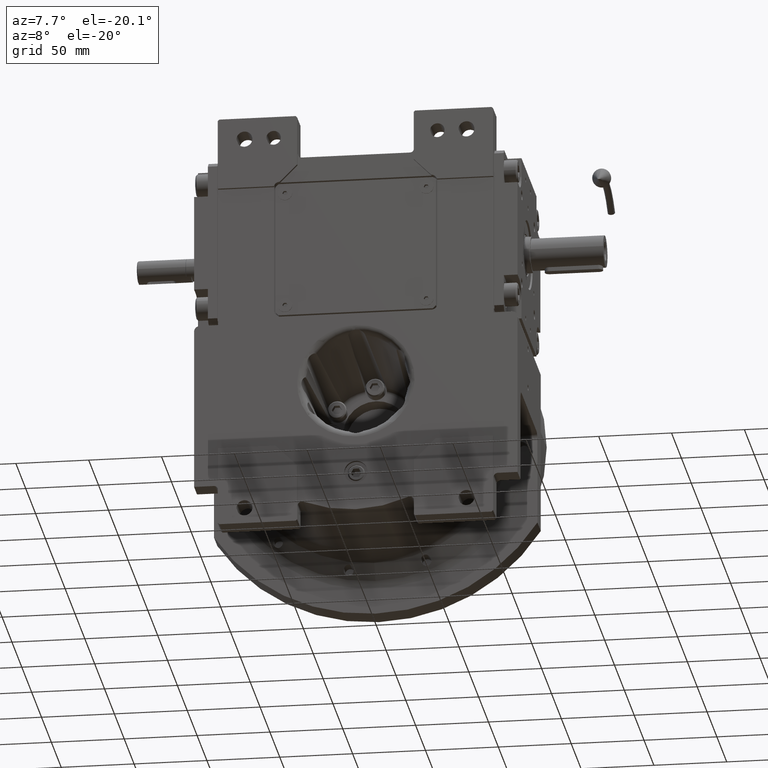
[diagram: clean part render]
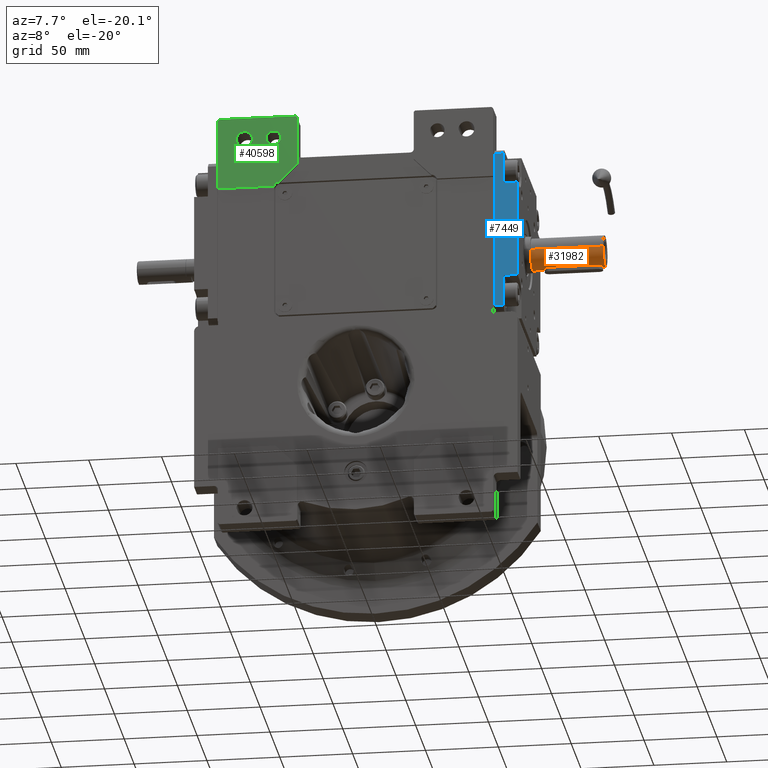
[diagram: same view with three faces highlighted in distinct colors, each labeled with its STEP entity id]
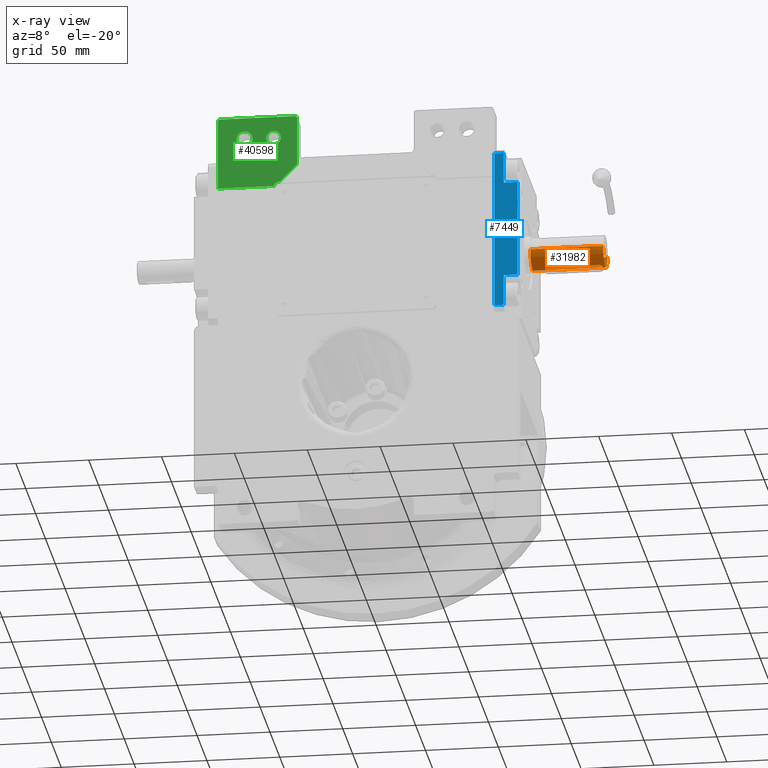
[diagram: x-ray of the same camera — body ghosted, the three highlighted faces saturated]
A machine part, auxiliary view with three faces highlighted in distinct colors.
The next image is the same camera in x-ray (body ghosted, the three faces saturated) — at least one of them is partly hidden behind the body in this view.
Their STEP definitions:

[orange] entity #31982 — the highlighted cylindrical surface (edge-blend (fillet) strip) has radius 11 mm, axis along (-1, -0, -0).
#497 = CARTESIAN_POINT ( 'NONE',  ( -2.831211772329599530, -114.4941159338586090, 10.62945302790815560 ) ) ;
#1097 = ORIENTED_EDGE ( 'NONE', *, *, #23081, .T. ) ;
#1170 = CARTESIAN_POINT ( 'NONE',  ( -2.775339673020056352, -114.6390896219055406, 10.64392870139627867 ) ) ;
#1232 = CARTESIAN_POINT ( 'NONE',  ( -2.601559308220473099, -78.00283810369263904, 10.68881842332068821 ) ) ;
#1566 = CARTESIAN_POINT ( 'NONE',  ( -3.000000000000082601, -79.50000000000000000, 10.58300524425888334 ) ) ;
#1830 = CARTESIAN_POINT ( 'NONE',  ( -1.208541879012663189, -116.2459060391745567, 10.93334476567150126 ) ) ;
#1880 = CARTESIAN_POINT ( 'NONE',  ( -4.840916435492046288E-08, -116.5000000000000000, 11.00000000000054357 ) ) ;
#2225 = CARTESIAN_POINT ( 'NONE',  ( 1.109632560325075401, -116.2872937962976181, 10.94387101518974426 ) ) ;
#2503 = CARTESIAN_POINT ( 'NONE',  ( -1.761503380922796458, -115.9362690069877857, 10.85852761782654241 ) ) ;
#2619 = AXIS2_PLACEMENT_3D ( 'NONE', #45521, #28929, #51028 ) ;
#2658 = CARTESIAN_POINT ( 'NONE',  ( -3.000000000000082601, -79.50000000000000000, 10.58300524425888334 ) ) ;
#2951 = VERTEX_POINT ( 'NONE', #11383 ) ;
#3314 = ORIENTED_EDGE ( 'NONE', *, *, #45388, .T. ) ;
#3734 = ORIENTED_EDGE ( 'NONE', *, *, #53699, .F. ) ;
#3778 = CARTESIAN_POINT ( 'NONE',  ( 2.167336317328022233, -77.42546825588505044, 10.78446061115303145 ) ) ;
#5028 = DIRECTION ( 'NONE',  ( 4.683861624749757595E-31, -1.000000000000000000, -9.367723249499515189E-31 ) ) ;
#5324 = DIRECTION ( 'NONE',  ( 4.683861624749757595E-31, -1.000000000000000000, -9.367723249499515189E-31 ) ) ;
#5748 = CARTESIAN_POINT ( 'NONE',  ( -2.308734339584207262, -77.56607553631236840, 10.75673227047042424 ) ) ;
#6093 = CARTESIAN_POINT ( 'NONE',  ( -0.3790214207103463906, -76.51752795411341879, 10.99496477369259750 ) ) ;
#6274 = ORIENTED_EDGE ( 'NONE', *, *, #39781, .F. ) ;
#6317 = LINE ( 'NONE', #11808, #21109 ) ;
#6363 = CARTESIAN_POINT ( 'NONE',  ( -2.232376625041765372, -115.5043590134487488, 10.77130177311135562 ) ) ;
#6428 = CARTESIAN_POINT ( 'NONE',  ( 1.512920533460952566, -76.90757899485140570, 10.89501526605510229 ) ) ;
#6563 = FACE_OUTER_BOUND ( 'NONE', #20093, .T. ) ;
#6700 = CARTESIAN_POINT ( 'NONE',  ( -0.7693699750027663820, -116.4290454329742630, 10.97984356645990545 ) ) ;
#6761 = CARTESIAN_POINT ( 'NONE',  ( 1.761503377968221429, -77.06373099116255787, 10.85852761879097983 ) ) ;
#6887 = CYLINDRICAL_SURFACE ( 'NONE', #51883, 11.00000000000000000 ) ;
#7081 = CARTESIAN_POINT ( 'NONE',  ( 2.767734096340809469, -114.6574386473348426, 10.64590626981483368 ) ) ;
#7094 = CARTESIAN_POINT ( 'NONE',  ( -2.748365602923866557, -78.29709372879079865, 10.65097210258031346 ) ) ;
#7141 = EDGE_CURVE ( 'NONE', #37215, #26092, #47848, .T. ) ;
#7418 = CARTESIAN_POINT ( 'NONE',  ( 1.147497349431800151, -116.2718709309673386, 10.93995103388393275 ) ) ;
#8438 = CARTESIAN_POINT ( 'NONE',  ( 2.764613546698416968, -114.6648726058257921, 10.64672004168922648 ) ) ;
#8889 = CARTESIAN_POINT ( 'NONE',  ( 2.999999999999917843, -113.5000000000000000, 10.58300524425888334 ) ) ;
#8951 = CARTESIAN_POINT ( 'NONE',  ( 2.775339659217219701, -78.36091034448602954, 10.64392870297112736 ) ) ;
#9283 = CARTESIAN_POINT ( 'NONE',  ( 2.786545491918452466, -78.38850868690020945, 10.64101912818406070 ) ) ;
#10157 = CARTESIAN_POINT ( 'NONE',  ( -2.498350178177048075, -115.1636859597702056, 10.71355040379599188 ) ) ;
#11250 = CARTESIAN_POINT ( 'NONE',  ( -2.768513115839242200, -78.34441767696033310, 10.64570307403959504 ) ) ;
#11383 = CARTESIAN_POINT ( 'NONE',  ( -4.840916435492046288E-08, -116.5000000000000000, 11.00000000000054357 ) ) ;
#11582 = CARTESIAN_POINT ( 'NONE',  ( -2.759871036972648906, -78.32389248760772205, 10.64795842999695985 ) ) ;
#11808 = CARTESIAN_POINT ( 'NONE',  ( 2.999999999999917843, -79.50000000000000000, 10.58300524425835576 ) ) ;
#11920 = CARTESIAN_POINT ( 'NONE',  ( 1.322026378660207113, -76.80667714470889962, 10.91998920209340085 ) ) ;
#12523 = CARTESIAN_POINT ( 'NONE',  ( -0.3739857927347237654, -116.5000000000000142, 11.00000000000056488 ) ) ;
#12739 = DIRECTION ( 'NONE',  ( 1.000000000000000000, 0.000000000000000000, -8.437694987151189707E-15 ) ) ;
#12908 = CARTESIAN_POINT ( 'NONE',  ( 1.067691574909802821, -116.3037818627402800, 10.94807355359308332 ) ) ;
#13252 = CARTESIAN_POINT ( 'NONE',  ( 0.6690863468408568826, -116.4260934098166018, 10.97984356288105978 ) ) ;
#13353 = LINE ( 'NONE', #2658, #15551 ) ;
#13497 = VERTEX_POINT ( 'NONE', #49397 ) ;
#13776 = CARTESIAN_POINT ( 'NONE',  ( 2.801868822121414748, -78.42737245009010394, 10.63704590504073266 ) ) ;
#13944 = CARTESIAN_POINT ( 'NONE',  ( 2.097778197096802799, -115.6448602184734540, 10.79818605929190944 ) ) ;
#14557 = CARTESIAN_POINT ( 'NONE',  ( -11.00000000000000000, -117.9999999999999858, 5.273559366969493567E-13 ) ) ;
#15133 = CARTESIAN_POINT ( 'NONE',  ( -1.147497411269821965, -76.72812909463448250, 10.93995103007683412 ) ) ;
#15551 = VECTOR ( 'NONE', #65823, 1000.000000000000000 ) ;
#15675 = CARTESIAN_POINT ( 'NONE',  ( -2.896620451319834366, -114.2867369626761729, 10.61255511890335690 ) ) ;
#16364 = CARTESIAN_POINT ( 'NONE',  ( -2.786545512822448334, -114.6114912608402392, 10.64101912421241458 ) ) ;
#16399 = CARTESIAN_POINT ( 'NONE',  ( -11.00000000000006573, -67.99999999999998579, 5.273559366969493567E-13 ) ) ;
#16696 = CARTESIAN_POINT ( 'NONE',  ( -2.854075939418676544, -114.4255224491567304, 10.62355099528267743 ) ) ;
#16759 = CARTESIAN_POINT ( 'NONE',  ( 2.143602447687557255, -77.40095959642091827, 10.78918136595093102 ) ) ;
#17023 = CARTESIAN_POINT ( 'NONE',  ( -1.512920531882281816, -116.0924210061373287, 10.89501526675180543 ) ) ;
#17087 = CARTESIAN_POINT ( 'NONE',  ( -2.644564621108248748, -78.08127093686655940, 10.67795878946512644 ) ) ;
#17419 = CARTESIAN_POINT ( 'NONE',  ( -0.9835476433820119491, -76.66500159928872904, 10.95606724537882215 ) ) ;
#17908 = DIRECTION ( 'NONE',  ( 4.683861624749757595E-31, -1.000000000000000000, -9.367723249499515189E-31 ) ) ;
#18078 = CARTESIAN_POINT ( 'NONE',  ( 2.698907300592912062, -114.8105448978638492, 10.66393860694415707 ) ) ;
#18235 = VERTEX_POINT ( 'NONE', #8889 ) ;
#18418 = CARTESIAN_POINT ( 'NONE',  ( 2.446669414197469639, -115.2470624180614038, 10.72593587093011891 ) ) ;
#18746 = CARTESIAN_POINT ( 'NONE',  ( 10.99999999999993427, -67.99999999999998579, 0.000000000000000000 ) ) ;
#18774 = CARTESIAN_POINT ( 'NONE',  ( 0.9835667666182050795, -116.3349916050398178, 10.95606526596663777 ) ) ;
#18954 = CARTESIAN_POINT ( 'NONE',  ( 2.653232577745002541, -78.08621952457062321, 10.67643291959784868 ) ) ;
#20093 = EDGE_LOOP ( 'NONE', ( #3314, #49918, #41864, #1097 ) ) ;
#20307 = CARTESIAN_POINT ( 'NONE',  ( -1.942007649469787767, -77.21260548667784462, 10.82708015886219322 ) ) ;
#21109 = VECTOR ( 'NONE', #53956, 1000.000000000000000 ) ;
#21206 = CARTESIAN_POINT ( 'NONE',  ( -3.000000000000082601, -113.5000000000000000, 10.58300524425888334 ) ) ;
#21539 = CARTESIAN_POINT ( 'NONE',  ( -2.801868851850209285, -114.5726274728256726, 10.63704589790054555 ) ) ;
#21604 = CARTESIAN_POINT ( 'NONE',  ( 1.179703428401750021, -76.74166051924402154, 10.93651200567690829 ) ) ;
#21936 = CARTESIAN_POINT ( 'NONE',  ( -1.897425700790519532, -77.17558050972412786, 10.83486050620179419 ) ) ;
#22276 = CARTESIAN_POINT ( 'NONE',  ( -2.698907276580607917, -78.18945505232753135, 10.66393861832711565 ) ) ;
#22932 = CARTESIAN_POINT ( 'NONE',  ( 1.139535554658587913, -116.2751577281618438, 10.94078554495685651 ) ) ;
#23081 = EDGE_CURVE ( 'NONE', #42054, #60808, #44506, .T. ) ;
#23272 = CARTESIAN_POINT ( 'NONE',  ( 1.942007614415585781, -115.7873945428069931, 10.82708016586962607 ) ) ;
#23567 = CARTESIAN_POINT ( 'NONE',  ( -1.322026388172354627, -116.1933228505703681, 10.91998920232885695 ) ) ;
#23613 = CARTESIAN_POINT ( 'NONE',  ( 1.765016538473137775, -115.9284393430261275, 10.85718210774120074 ) ) ;
#23959 = CARTESIAN_POINT ( 'NONE',  ( 2.737723598718580398, -114.7268635114971715, 10.65376798934632419 ) ) ;
#24482 = CARTESIAN_POINT ( 'NONE',  ( 2.293772752492888589, -77.56545913327460084, 10.75861604569774777 ) ) ;
#25787 = EDGE_CURVE ( 'NONE', #42054, #37215, #26734, .T. ) ;
#26062 = CARTESIAN_POINT ( 'NONE',  ( -2.293772750023097551, -115.4345408691869181, 10.75861604645037595 ) ) ;
#26092 = VERTEX_POINT ( 'NONE', #14557 ) ;
#26467 = B_SPLINE_CURVE_WITH_KNOTS ( 'NONE', 3,
 ( #1880, #49864, #28472, #13252, #34347, #49198, #18774, #12908, #2225, #55410, #22932, #7418, #49523, #60908, #44703, #23613, #61256, #23272, #65724, #44348, #40216, #13944, #44009, #18418, #65372, #28136, #18078, #34014, #23959, #39530, #29152, #8438, #7081, #65041, #39194, #45050, #55064 ),
 .UNSPECIFIED., .F., .F.,
 ( 4, 2, 2, 1, 1, 1, 2, 2, 2, 2, 2, 2, 2, 2, 2, 2, 1, 1, 2, 2, 4 ),
 ( 0.5000000000000000000, 0.5624999999999261702, 0.5937499999998896438, 0.6093749999998719913, 0.6171874999998624434, 0.6210937499998576694, 0.6230468749998561151, 0.6249999999998545608, 0.6874999999998646638, 0.7187499999998696598, 0.7343749999998722133, 0.7421874999998734346, 0.7499999999998747668, 0.8124999999998852029, 0.8437499999998885336, 0.8593749999998924194, 0.8671874999998916422, 0.8710937499998941957, 0.8730468749998985256, 0.8749999999999027445, 1.000000000000000000 ),
 .UNSPECIFIED. ) ;
#26734 = LINE ( 'NONE', #63301, #42766 ) ;
#26810 = CARTESIAN_POINT ( 'NONE',  ( -2.916727202267201946, -78.70149496793983701, 10.60716793333590680 ) ) ;
#26944 = DIRECTION ( 'NONE',  ( 1.000000000000000000, 0.000000000000000000, -8.437694987151189707E-15 ) ) ;
#27151 = CARTESIAN_POINT ( 'NONE',  ( -1.429970842532967135, -76.85548033673212842, 10.90719156782524024 ) ) ;
#27478 = CARTESIAN_POINT ( 'NONE',  ( -1.109627391464170332, -76.71270413328910820, 10.94387156038236952 ) ) ;
#27820 = CARTESIAN_POINT ( 'NONE',  ( -0.6690474891746290842, -76.57389770467737833, 10.97984744493157905 ) ) ;
#27876 = ORIENTED_EDGE ( 'NONE', *, *, #34241, .F. ) ;
#28136 = CARTESIAN_POINT ( 'NONE',  ( 2.644564663183347264, -114.9187289833812144, 10.67795877401475657 ) ) ;
#28150 = CARTESIAN_POINT ( 'NONE',  ( 1.234039021328146690, -76.76549614676042665, 10.93043900635687571 ) ) ;
#28472 = CARTESIAN_POINT ( 'NONE',  ( 0.3790610715422109700, -116.4824670046869244, 10.99496089072069083 ) ) ;
#28929 = DIRECTION ( 'NONE',  ( 4.683861624749757595E-31, -1.000000000000000000, -9.367723249499515189E-31 ) ) ;
#29152 = CARTESIAN_POINT ( 'NONE',  ( 2.759871028151251515, -114.6761075330201720, 10.64795842826989691 ) ) ;
#29338 = CARTESIAN_POINT ( 'NONE',  ( 2.999999999999910738, -79.29694141520381834, 10.58473540700586923 ) ) ;
#29682 = CARTESIAN_POINT ( 'NONE',  ( 2.920736444934333598, -78.80792121401641737, 10.60630214428832652 ) ) ;
#30023 = CARTESIAN_POINT ( 'NONE',  ( 2.438082008746779383, -77.74812880550851446, 10.72743682466661141 ) ) ;
#30778 = CARTESIAN_POINT ( 'NONE',  ( -11.00000000000006573, -67.99999999999998579, 5.273559366969493567E-13 ) ) ;
#31982 = ADVANCED_FACE ( 'NONE', ( #32807, #6563 ), #6887, .T. ) ;
#32000 = CARTESIAN_POINT ( 'NONE',  ( 1.208541853669290678, -76.75409394963315890, 10.93334476671339850 ) ) ;
#32337 = CARTESIAN_POINT ( 'NONE',  ( -1.127575440310275345, -76.71996127125699161, 10.94202595200815509 ) ) ;
#32614 = CARTESIAN_POINT ( 'NONE',  ( -2.722192511089895017, -114.7671779114493376, 10.65774369693641788 ) ) ;
#32637 = B_SPLINE_CURVE_WITH_KNOTS ( 'NONE', 3,
 ( #47808, #48475, #42630, #57473, #15675, #16696, #497, #21539, #16364, #37794, #1170, #58835, #32614, #41605, #10157, #53671, #36777, #26062, #6363, #47122, #57824, #33287, #49474, #2503, #17023, #55359, #23567, #38802, #59830, #1830, #65669, #33621, #49144, #60510, #6700, #12523, #38464 ),
 .UNSPECIFIED., .F., .F.,
 ( 4, 2, 2, 1, 1, 1, 2, 2, 2, 2, 2, 2, 2, 2, 2, 2, 1, 1, 2, 2, 4 ),
 ( 0.000000000000000000, 0.06249999999990885069, 0.09374999999986544097, 0.1093749999998437361, 0.1171874999998329114, 0.1210937499998295808, 0.1230468749998299832, 0.1249999999998303857, 0.1874999999998473443, 0.2187499999998558375, 0.2343749999998600564, 0.2421874999998633593, 0.2499999999998667177, 0.3124999999998983036, 0.3437499999999129030, 0.3593749999999201750, 0.3671874999999238387, 0.3710937499999256706, 0.3730468749999276690, 0.3749999999999297229, 0.5000000000000000000 ),
 .UNSPECIFIED. ) ;
#32677 = CARTESIAN_POINT ( 'NONE',  ( -2.737723593628873076, -78.27313647700938759, 10.65376799547565057 ) ) ;
#32807 = FACE_BOUND ( 'NONE', #65970, .T. ) ;
#33011 = CARTESIAN_POINT ( 'NONE',  ( -2.764613558908796342, -78.33512742314238153, 10.64672004227435131 ) ) ;
#33287 = CARTESIAN_POINT ( 'NONE',  ( -2.143602493980521384, -115.5990403563740898, 10.78918135663529476 ) ) ;
#33349 = CARTESIAN_POINT ( 'NONE',  ( 1.167542114975275158, -76.73651225059062142, 10.93782164777859656 ) ) ;
#33621 = CARTESIAN_POINT ( 'NONE',  ( -1.167542148442821448, -116.2634877352683560, 10.93782164602124141 ) ) ;
#33677 = CARTESIAN_POINT ( 'NONE',  ( -3.000000000000082601, -79.50000000000000000, 10.58300524425888334 ) ) ;
#34014 = CARTESIAN_POINT ( 'NONE',  ( 2.715324943672460911, -114.7760520230643806, 10.65964343166087325 ) ) ;
#34241 = EDGE_CURVE ( 'NONE', #2951, #18235, #26467, .T. ) ;
#34347 = CARTESIAN_POINT ( 'NONE',  ( 0.7660654482596037651, -116.4022991523579549, 10.97354467628120922 ) ) ;
#34884 = CARTESIAN_POINT ( 'NONE',  ( 2.331831195179028260, -77.61164425542864365, 10.75053737701512446 ) ) ;
#35039 = B_SPLINE_CURVE_WITH_KNOTS ( 'NONE', 3,
 ( #41075, #29338, #35900, #29682, #56603, #50401, #45239, #13776, #9283, #40054, #8951, #66253, #40397, #18954, #51441, #30023, #34884, #24482, #56264, #51089, #3778, #16759, #37526, #6761, #6428, #41409, #11920, #53394, #28150, #32000, #21604, #33349, #38196, #43029, #53063, #59560, #53733, #6093, #27820, #64046, #67620, #17419, #36243, #27478, #32337, #64716, #15133, #43349, #27151, #37859, #54403, #21936, #20307, #48868, #48206, #64387, #48536, #5748, #62445, #1232, #17087, #22276, #59227, #32677, #7094, #11582, #33011, #54071, #11250, #26810, #57275, #1566 ),
 .UNSPECIFIED., .F., .F.,
 ( 4, 2, 2, 1, 1, 1, 2, 2, 2, 2, 2, 2, 2, 2, 2, 2, 1, 1, 2, 2, 2, 2, 2, 1, 1, 1, 2, 2, 2, 2, 2, 2, 2, 2, 2, 2, 1, 1, 2, 2, 4 ),
 ( 0.000000000000000000, 0.06250000000004603262, 0.09375000000006906975, 0.1093750000000805328, 0.1171875000000841688, 0.1210937500000859729, 0.1230468750000868611, 0.1250000000000877631, 0.1875000000000936751, 0.2187500000000984768, 0.2343750000001023071, 0.2421875000001042777, 0.2500000000001061928, 0.3125000000001216804, 0.3437500000001282308, 0.3593750000001315059, 0.3671875000001320610, 0.3710937500001322831, 0.3730468750001323941, 0.3750000000001324496, 0.5000000000001140199, 0.5625000000001048051, 0.5937500000000998090, 0.6093750000000973666, 0.6171875000000967004, 0.6210937500000972555, 0.6230468750000974776, 0.6250000000000976996, 0.6875000000000704992, 0.7187500000000568434, 0.7343750000000500711, 0.7421875000000479616, 0.7500000000000457412, 0.8125000000000192069, 0.8437500000000058842, 0.8593749999999970024, 0.8671874999999952260, 0.8710937499999972244, 0.8730468749999982236, 0.8749999999999992228, 1.000000000000000000 ),
 .UNSPECIFIED. ) ;
#35900 = CARTESIAN_POINT ( 'NONE',  ( 2.979326592047862210, -79.09712189806013782, 10.59077590235678734 ) ) ;
#36243 = CARTESIAN_POINT ( 'NONE',  ( -1.067681461186235081, -76.69621423876722588, 10.94807461226177026 ) ) ;
#36368 = VERTEX_POINT ( 'NONE', #21206 ) ;
#36777 = CARTESIAN_POINT ( 'NONE',  ( -2.331831185041231436, -115.3883557567792622, 10.75053737960902644 ) ) ;
#36806 = ORIENTED_EDGE ( 'NONE', *, *, #56220, .F. ) ;
#37215 = VERTEX_POINT ( 'NONE', #56898 ) ;
#37526 = CARTESIAN_POINT ( 'NONE',  ( 1.942138428050927956, -77.19951509893311936, 10.82877008393308849 ) ) ;
#37794 = CARTESIAN_POINT ( 'NONE',  ( -2.779840307740184979, -114.6280617584312154, 10.64275981934228099 ) ) ;
#37859 = CARTESIAN_POINT ( 'NONE',  ( -1.678559007684457871, -77.01162404916421167, 10.87070391387389989 ) ) ;
#38196 = CARTESIAN_POINT ( 'NONE',  ( 1.159478943271768259, -76.73311949815575872, 10.93868413228516978 ) ) ;
#38464 = CARTESIAN_POINT ( 'NONE',  ( -4.840916435492046288E-08, -116.5000000000000000, 11.00000000000054357 ) ) ;
#38802 = CARTESIAN_POINT ( 'NONE',  ( -1.286031809961740491, -116.2106413819468287, 10.92437284010994780 ) ) ;
#39194 = CARTESIAN_POINT ( 'NONE',  ( 2.916727034310275357, -114.2985054512028000, 10.60716798336014932 ) ) ;
#39530 = CARTESIAN_POINT ( 'NONE',  ( 2.748365601800574876, -114.7029062735035438, 10.65097209834164538 ) ) ;
#39781 = EDGE_CURVE ( 'NONE', #36368, #2951, #32637, .T. ) ;
#40054 = CARTESIAN_POINT ( 'NONE',  ( 2.779840291039510358, -78.37193820043569303, 10.64275982188527969 ) ) ;
#40216 = CARTESIAN_POINT ( 'NONE',  ( 2.076400096479012802, -115.6655274302378587, 10.80229491738731795 ) ) ;
#40397 = CARTESIAN_POINT ( 'NONE',  ( 2.722192524068726804, -78.23282212291367443, 10.65774368925958093 ) ) ;
#41075 = CARTESIAN_POINT ( 'NONE',  ( 2.999999999999917843, -79.50000000000000000, 10.58300524425835576 ) ) ;
#41409 = CARTESIAN_POINT ( 'NONE',  ( 1.433641076574830864, -76.86340366032537474, 10.90581970597269468 ) ) ;
#41605 = CARTESIAN_POINT ( 'NONE',  ( -2.653232546180609219, -114.9137805338954621, 10.67643293072694632 ) ) ;
#41864 = ORIENTED_EDGE ( 'NONE', *, *, #25787, .F. ) ;
#42054 = VERTEX_POINT ( 'NONE', #18746 ) ;
#42630 = CARTESIAN_POINT ( 'NONE',  ( -2.979326620798057768, -113.9028778870461593, 10.59077587802701359 ) ) ;
#42766 = VECTOR ( 'NONE', #5324, 1000.000000000000000 ) ;
#43029 = CARTESIAN_POINT ( 'NONE',  ( 1.157452250761889845, -76.73226697775147898, 10.93890089386556852 ) ) ;
#43349 = CARTESIAN_POINT ( 'NONE',  ( -1.279005615026164167, -76.78279251499962754, 10.92607964108014151 ) ) ;
#44009 = CARTESIAN_POINT ( 'NONE',  ( 2.308734362823998243, -115.4339244520514711, 10.75673226671235128 ) ) ;
#44348 = CARTESIAN_POINT ( 'NONE',  ( 2.031554872715493953, -115.7076528737364072, 10.81075489181155191 ) ) ;
#44506 = CIRCLE ( 'NONE', #65410, 11.00000000000000000 ) ;
#44703 = CARTESIAN_POINT ( 'NONE',  ( 1.678559002724982374, -115.9883759540916230, 10.87070391493025490 ) ) ;
#45050 = CARTESIAN_POINT ( 'NONE',  ( 2.999999999999910738, -113.9062021680413750, 10.58646632254328424 ) ) ;
#45239 = CARTESIAN_POINT ( 'NONE',  ( 2.831211728711944708, -78.50588394405968984, 10.62945304072544772 ) ) ;
#45388 = EDGE_CURVE ( 'NONE', #60808, #26092, #52353, .T. ) ;
#45521 = CARTESIAN_POINT ( 'NONE',  ( -2.108315510120707088E-27, -117.9999999999999858, 5.273559366969493567E-13 ) ) ;
#47122 = CARTESIAN_POINT ( 'NONE',  ( -2.211193358110675078, -115.5277210365973701, 10.77562496973150985 ) ) ;
#47808 = CARTESIAN_POINT ( 'NONE',  ( -3.000000000000082601, -113.5000000000000000, 10.58300524425888334 ) ) ;
#47848 = CIRCLE ( 'NONE', #2619, 11.00000000000000000 ) ;
#48206 = CARTESIAN_POINT ( 'NONE',  ( -2.031554922310100597, -77.29234717181736869, 10.81075488192654355 ) ) ;
#48475 = CARTESIAN_POINT ( 'NONE',  ( -3.000000000000089706, -113.7030584421399340, 10.58473539081859904 ) ) ;
#48536 = CARTESIAN_POINT ( 'NONE',  ( -2.097778273838097007, -77.35513985681001259, 10.79818604398536053 ) ) ;
#48868 = CARTESIAN_POINT ( 'NONE',  ( -2.009136536754219104, -77.27193756388578549, 10.81489991634849801 ) ) ;
#49144 = CARTESIAN_POINT ( 'NONE',  ( -1.159478978466624399, -116.2668804870942694, 10.93868413037353982 ) ) ;
#49198 = CARTESIAN_POINT ( 'NONE',  ( 0.9111339967345983837, -116.3587381832188044, 10.96220668040148816 ) ) ;
#49397 = CARTESIAN_POINT ( 'NONE',  ( 2.999999999999917843, -79.50000000000000000, 10.58300524425835576 ) ) ;
#49474 = CARTESIAN_POINT ( 'NONE',  ( -1.942138448682051433, -115.8004848877714323, 10.82877008001571539 ) ) ;
#49523 = CARTESIAN_POINT ( 'NONE',  ( 1.279005597976960784, -116.2172074953522838, 10.92607964090160699 ) ) ;
#49864 = CARTESIAN_POINT ( 'NONE',  ( 0.1869928963672231603, -116.5000000000000142, 11.00000000000057199 ) ) ;
#49918 = ORIENTED_EDGE ( 'NONE', *, *, #7141, .F. ) ;
#50392 = CARTESIAN_POINT ( 'NONE',  ( 3.620748295448003404E-29, -67.99999999999998579, 0.000000000000000000 ) ) ;
#50401 = CARTESIAN_POINT ( 'NONE',  ( 2.854075889747949901, -78.57447739851245672, 10.62355101183470119 ) ) ;
#51028 = DIRECTION ( 'NONE',  ( 1.000000000000000000, 0.000000000000000000, -8.437694987151188129E-15 ) ) ;
#51089 = CARTESIAN_POINT ( 'NONE',  ( 2.211193340447746181, -77.47227894400909065, 10.77562497333751423 ) ) ;
#51240 = VECTOR ( 'NONE', #5028, 1000.000000000000000 ) ;
#51441 = CARTESIAN_POINT ( 'NONE',  ( 2.498350210409106875, -77.83631408846902389, 10.71355039470006965 ) ) ;
#51883 = AXIS2_PLACEMENT_3D ( 'NONE', #58357, #64522, #26944 ) ;
#52353 = LINE ( 'NONE', #16399, #51240 ) ;
#52624 = VERTEX_POINT ( 'NONE', #33677 ) ;
#53063 = CARTESIAN_POINT ( 'NONE',  ( 0.7694190409318258927, -76.57097496801952730, 10.97983838684685765 ) ) ;
#53394 = CARTESIAN_POINT ( 'NONE',  ( 1.286031796418888540, -76.78935861155120790, 10.92437284017435495 ) ) ;
#53671 = CARTESIAN_POINT ( 'NONE',  ( -2.438081981028036083, -115.2518712317274634, 10.72743683188287989 ) ) ;
#53699 = EDGE_CURVE ( 'NONE', #13497, #52624, #35039, .T. ) ;
#53733 = CARTESIAN_POINT ( 'NONE',  ( -0.1869662585112066566, -76.49999999283612340, 11.00000258885300219 ) ) ;
#53956 = DIRECTION ( 'NONE',  ( 4.683861624749757595E-31, -1.000000000000000000, -9.367723249499515189E-31 ) ) ;
#54071 = CARTESIAN_POINT ( 'NONE',  ( -2.767734110829767502, -78.34256138730094676, 10.64590626962410091 ) ) ;
#54403 = CARTESIAN_POINT ( 'NONE',  ( -1.765016550553752284, -77.07156066506716741, 10.85718210521195282 ) ) ;
#55064 = CARTESIAN_POINT ( 'NONE',  ( 2.999999999999917843, -113.5000000000000000, 10.58300524425888334 ) ) ;
#55359 = CARTESIAN_POINT ( 'NONE',  ( -1.433641077008294573, -116.1365963392273954, 10.90581970676172396 ) ) ;
#55410 = CARTESIAN_POINT ( 'NONE',  ( 1.127578398133117554, -116.2800375271875311, 10.94202563825619912 ) ) ;
#56220 = EDGE_CURVE ( 'NONE', #52624, #36368, #13353, .T. ) ;
#56264 = CARTESIAN_POINT ( 'NONE',  ( 2.232376612811737271, -77.49564097281744068, 10.77130177557136115 ) ) ;
#56603 = CARTESIAN_POINT ( 'NONE',  ( 2.896620395667449444, -78.71326283637804977, 10.61255514141635814 ) ) ;
#56898 = CARTESIAN_POINT ( 'NONE',  ( 11.00000000000000000, -117.9999999999999858, 0.000000000000000000 ) ) ;
#57275 = CARTESIAN_POINT ( 'NONE',  ( -3.000000000000089706, -79.09379826886218723, 10.58646627284832498 ) ) ;
#57473 = CARTESIAN_POINT ( 'NONE',  ( -2.920736496382444258, -114.1920785685286575, 10.60630211981264281 ) ) ;
#57824 = CARTESIAN_POINT ( 'NONE',  ( -2.167336347002079222, -115.5745317129838554, 10.78446060510479398 ) ) ;
#58357 = CARTESIAN_POINT ( 'NONE',  ( 3.620748295448003404E-29, -67.99999999999998579, 0.000000000000000000 ) ) ;
#58835 = CARTESIAN_POINT ( 'NONE',  ( -2.772312159647778884, -114.6464296684535071, 10.64471541497841756 ) ) ;
#59227 = CARTESIAN_POINT ( 'NONE',  ( -2.715324926754116852, -78.22394794041348121, 10.65964344122199847 ) ) ;
#59560 = CARTESIAN_POINT ( 'NONE',  ( 0.3739328618711909580, -76.50000001432781005, 10.99999482229338454 ) ) ;
#59830 = CARTESIAN_POINT ( 'NONE',  ( -1.234039042478094039, -116.2345038436760092, 10.93043900566964233 ) ) ;
#60510 = CARTESIAN_POINT ( 'NONE',  ( -1.157453054966575579, -116.2677326878750677, 10.93890081083045018 ) ) ;
#60808 = VERTEX_POINT ( 'NONE', #30778 ) ;
#60908 = CARTESIAN_POINT ( 'NONE',  ( 1.429970843166093575, -116.1445196625885643, 10.90719156650611232 ) ) ;
#61256 = CARTESIAN_POINT ( 'NONE',  ( 1.897425672200152347, -115.8244195134346342, 10.83486051196197408 ) ) ;
#62445 = CARTESIAN_POINT ( 'NONE',  ( -2.446669362798362890, -77.75293751087284022, 10.72593588417801058 ) ) ;
#63301 = CARTESIAN_POINT ( 'NONE',  ( 10.99999999999993427, -67.99999999999998579, 0.000000000000000000 ) ) ;
#63365 = EDGE_CURVE ( 'NONE', #13497, #18235, #6317, .T. ) ;
#64046 = CARTESIAN_POINT ( 'NONE',  ( -0.7660301964639789629, -76.59769131162434519, 10.97354823434116966 ) ) ;
#64387 = CARTESIAN_POINT ( 'NONE',  ( -2.076400153897492107, -77.33447262473092110, 10.80229490591453079 ) ) ;
#64522 = DIRECTION ( 'NONE',  ( -4.683861624749757595E-31, 1.000000000000000000, 9.367723249499515189E-31 ) ) ;
#64716 = CARTESIAN_POINT ( 'NONE',  ( -1.139534090975068858, -76.72484166894793134, 10.94078570188625754 ) ) ;
#65041 = CARTESIAN_POINT ( 'NONE',  ( 2.768513101405038146, -114.6555823575875905, 10.64570307426184570 ) ) ;
#65372 = CARTESIAN_POINT ( 'NONE',  ( 2.601559358105697051, -114.9971618098907555, 10.68881840702283625 ) ) ;
#65410 = AXIS2_PLACEMENT_3D ( 'NONE', #50392, #17908, #12739 ) ;
#65669 = CARTESIAN_POINT ( 'NONE',  ( -1.179703459327985593, -116.2583394675194342, 10.93651200414553948 ) ) ;
#65724 = CARTESIAN_POINT ( 'NONE',  ( 2.009136490928566943, -115.7280624773660804, 10.81489992548218737 ) ) ;
#65823 = DIRECTION ( 'NONE',  ( 4.683861624749757595E-31, -1.000000000000000000, -9.367723249499515189E-31 ) ) ;
#65970 = EDGE_LOOP ( 'NONE', ( #67332, #27876, #6274, #36806, #3734 ) ) ;
#66253 = CARTESIAN_POINT ( 'NONE',  ( 2.772312148145354982, -78.35357030373856446, 10.64471541581967173 ) ) ;
#67332 = ORIENTED_EDGE ( 'NONE', *, *, #63365, .T. ) ;
#67620 = CARTESIAN_POINT ( 'NONE',  ( -0.9111087367172275853, -76.64125370730340592, 10.96220926695045605 ) ) ;

[blue] entity #7449 — the highlighted planar face has unit normal (-0, -1, 0).
#494 = LINE ( 'NONE', #22546, #52813 ) ;
#2692 = LINE ( 'NONE', #9238, #35725 ) ;
#6246 = VECTOR ( 'NONE', #19124, 1000.000000000000000 ) ;
#6787 = DIRECTION ( 'NONE',  ( 8.437694987151227573E-15, -2.109423746787996220E-15, 1.000000000000000000 ) ) ;
#6911 = CARTESIAN_POINT ( 'NONE',  ( -53.49999999999973710, -6.499999999998423483, 33.49999999999998579 ) ) ;
#7449 = ADVANCED_FACE ( 'NONE', ( #49234 ), #37883, .T. ) ;
#8199 = CARTESIAN_POINT ( 'NONE',  ( -53.49999999999947420, -15.99999999999894484, 33.49999999999998579 ) ) ;
#8563 = EDGE_CURVE ( 'NONE', #28344, #11728, #2692, .T. ) ;
#9238 = CARTESIAN_POINT ( 'NONE',  ( -53.50000000000026290, 1.582067810090848070E-12, -55.00000000000026290 ) ) ;
#11728 = VERTEX_POINT ( 'NONE', #52316 ) ;
#12227 = DIRECTION ( 'NONE',  ( 8.437694987151227573E-15, -2.109423746787996220E-15, 1.000000000000000000 ) ) ;
#13392 = EDGE_CURVE ( 'NONE', #11728, #44508, #68074, .T. ) ;
#13660 = ORIENTED_EDGE ( 'NONE', *, *, #8563, .T. ) ;
#15456 = VERTEX_POINT ( 'NONE', #6911 ) ;
#15504 = CARTESIAN_POINT ( 'NONE',  ( -53.50000000000026290, 1.582067810090848070E-12, -55.00000000000026290 ) ) ;
#17439 = VECTOR ( 'NONE', #57982, 1000.000000000000000 ) ;
#18070 = LINE ( 'NONE', #45041, #54724 ) ;
#19124 = DIRECTION ( 'NONE',  ( 8.437694987151227573E-15, -2.109423746787996220E-15, 1.000000000000000000 ) ) ;
#19372 = ORIENTED_EDGE ( 'NONE', *, *, #24901, .T. ) ;
#19439 = CARTESIAN_POINT ( 'NONE',  ( -53.50000000000000000, -15.99999999999841904, -33.50000000000001421 ) ) ;
#21417 = LINE ( 'NONE', #31815, #26479 ) ;
#21644 = VERTEX_POINT ( 'NONE', #19439 ) ;
#22546 = CARTESIAN_POINT ( 'NONE',  ( -53.49999999999973710, 1.054711873393898713E-12, 55.00000000000000711 ) ) ;
#23869 = VERTEX_POINT ( 'NONE', #30617 ) ;
#24233 = EDGE_CURVE ( 'NONE', #21644, #23869, #41581, .T. ) ;
#24901 = EDGE_CURVE ( 'NONE', #23869, #15456, #51009, .T. ) ;
#25633 = ORIENTED_EDGE ( 'NONE', *, *, #58381, .F. ) ;
#26479 = VECTOR ( 'NONE', #27307, 1000.000000000000000 ) ;
#26658 = EDGE_CURVE ( 'NONE', #28344, #65768, #64143, .T. ) ;
#27307 = DIRECTION ( 'NONE',  ( -2.320366121466570228E-14, 1.000000000000000000, -2.109423746787997797E-15 ) ) ;
#28019 = ORIENTED_EDGE ( 'NONE', *, *, #53412, .F. ) ;
#28344 = VERTEX_POINT ( 'NONE', #33784 ) ;
#30617 = CARTESIAN_POINT ( 'NONE',  ( -53.49999999999947420, -15.99999999999894484, 33.49999999999998579 ) ) ;
#31636 = VECTOR ( 'NONE', #66174, 1000.000000000000000 ) ;
#31815 = CARTESIAN_POINT ( 'NONE',  ( -53.50000000000000000, -15.99999999999841904, -33.50000000000001421 ) ) ;
#33373 = DIRECTION ( 'NONE',  ( -1.000000000000000000, 2.320366121466565494E-14, 8.437694987151276482E-15 ) ) ;
#33784 = CARTESIAN_POINT ( 'NONE',  ( -53.50000000000026290, 1.582067810090848070E-12, -55.00000000000026290 ) ) ;
#35725 = VECTOR ( 'NONE', #61386, 1000.000000000000000 ) ;
#37883 = PLANE ( 'NONE',  #57632 ) ;
#40535 = VERTEX_POINT ( 'NONE', #53094 ) ;
#40938 = ORIENTED_EDGE ( 'NONE', *, *, #13392, .T. ) ;
#41581 = LINE ( 'NONE', #46758, #6246 ) ;
#44508 = VERTEX_POINT ( 'NONE', #50021 ) ;
#45041 = CARTESIAN_POINT ( 'NONE',  ( -53.49999999999973710, -6.499999999998423483, 33.49999999999998579 ) ) ;
#46370 = DIRECTION ( 'NONE',  ( 8.437694987151227573E-15, -2.109423746787996220E-15, 1.000000000000000000 ) ) ;
#46758 = CARTESIAN_POINT ( 'NONE',  ( -53.50000000000000000, -15.99999999999841904, -33.50000000000001421 ) ) ;
#47350 = EDGE_CURVE ( 'NONE', #15456, #40535, #18070, .T. ) ;
#48227 = CARTESIAN_POINT ( 'NONE',  ( -53.50000000000052580, 1.582067810090848070E-12, -58.00000000000027001 ) ) ;
#49234 = FACE_OUTER_BOUND ( 'NONE', #51119, .T. ) ;
#50021 = CARTESIAN_POINT ( 'NONE',  ( -53.50000000000026290, -6.499999999998423483, -33.50000000000001421 ) ) ;
#51009 = LINE ( 'NONE', #8199, #31636 ) ;
#51112 = ORIENTED_EDGE ( 'NONE', *, *, #26658, .F. ) ;
#51119 = EDGE_LOOP ( 'NONE', ( #51112, #13660, #40938, #28019, #52831, #19372, #62137, #25633 ) ) ;
#52316 = CARTESIAN_POINT ( 'NONE',  ( -53.50000000000026290, -6.499999999998423483, -55.00000000000026290 ) ) ;
#52813 = VECTOR ( 'NONE', #54003, 1000.000000000000000 ) ;
#52831 = ORIENTED_EDGE ( 'NONE', *, *, #24233, .T. ) ;
#53094 = CARTESIAN_POINT ( 'NONE',  ( -53.49999999999973710, -6.499999999998936850, 55.00000000000000711 ) ) ;
#53412 = EDGE_CURVE ( 'NONE', #21644, #44508, #21417, .T. ) ;
#54003 = DIRECTION ( 'NONE',  ( 2.320366121466570228E-14, -1.000000000000000000, 2.109423746787997797E-15 ) ) ;
#54724 = VECTOR ( 'NONE', #12227, 1000.000000000000000 ) ;
#56715 = CARTESIAN_POINT ( 'NONE',  ( -53.50000000000026290, -6.499999999998423483, -55.00000000000026290 ) ) ;
#57632 = AXIS2_PLACEMENT_3D ( 'NONE', #48227, #33373, #6787 ) ;
#57982 = DIRECTION ( 'NONE',  ( 8.437694987151227573E-15, -2.109423746787996220E-15, 1.000000000000000000 ) ) ;
#58381 = EDGE_CURVE ( 'NONE', #65768, #40535, #494, .T. ) ;
#61386 = DIRECTION ( 'NONE',  ( 2.320366121466570228E-14, -1.000000000000000000, 2.109423746787997797E-15 ) ) ;
#62137 = ORIENTED_EDGE ( 'NONE', *, *, #47350, .T. ) ;
#64143 = LINE ( 'NONE', #15504, #17439 ) ;
#64483 = CARTESIAN_POINT ( 'NONE',  ( -53.49999999999973710, 1.054711873393898713E-12, 55.00000000000000711 ) ) ;
#64767 = VECTOR ( 'NONE', #46370, 1000.000000000000000 ) ;
#65768 = VERTEX_POINT ( 'NONE', #64483 ) ;
#66174 = DIRECTION ( 'NONE',  ( -2.320366121466570228E-14, 1.000000000000000000, -2.109423746787997797E-15 ) ) ;
#68074 = LINE ( 'NONE', #56715, #64767 ) ;

[green] entity #40598 — the highlighted planar face has unit normal (0, -1, 0).
#457 = EDGE_LOOP ( 'NONE', ( #19572, #15919 ) ) ;
#1478 = EDGE_CURVE ( 'NONE', #14323, #35604, #38878, .T. ) ;
#1802 = DIRECTION ( 'NONE',  ( -1.000000000000000000, 0.000000000000000000, 0.000000000000000000 ) ) ;
#2131 = EDGE_LOOP ( 'NONE', ( #26007, #3116, #37845, #7735, #29817, #33646, #23419, #39606 ) ) ;
#2348 = DIRECTION ( 'NONE',  ( -1.000000000000000000, 0.000000000000000000, 0.000000000000000000 ) ) ;
#2432 = VERTEX_POINT ( 'NONE', #67859 ) ;
#2929 = LINE ( 'NONE', #50242, #23318 ) ;
#3116 = ORIENTED_EDGE ( 'NONE', *, *, #59619, .T. ) ;
#3193 = VERTEX_POINT ( 'NONE', #39689 ) ;
#3242 = CARTESIAN_POINT ( 'NONE',  ( -81.69999999999998863, -55.50000000000000000, 178.0000000000000000 ) ) ;
#5412 = CARTESIAN_POINT ( 'NONE',  ( -94.50000000000000000, -55.50000000000000000, 143.0000000000000000 ) ) ;
#5544 = DIRECTION ( 'NONE',  ( 0.000000000000000000, 0.000000000000000000, 1.000000000000000000 ) ) ;
#6614 = VECTOR ( 'NONE', #17483, 1000.000000000000000 ) ;
#6793 = DIRECTION ( 'NONE',  ( 0.000000000000000000, -1.000000000000000000, 0.000000000000000000 ) ) ;
#7735 = ORIENTED_EDGE ( 'NONE', *, *, #56753, .T. ) ;
#8336 = CARTESIAN_POINT ( 'NONE',  ( -76.20000000000000284, -55.50000000000000000, 178.0000000000000000 ) ) ;
#8772 = AXIS2_PLACEMENT_3D ( 'NONE', #21049, #63175, #16227 ) ;
#9403 = VECTOR ( 'NONE', #22082, 1000.000000000000000 ) ;
#11056 = DIRECTION ( 'NONE',  ( -0.7071067811865474617, 0.000000000000000000, -0.7071067811865474617 ) ) ;
#11983 = LINE ( 'NONE', #33076, #6614 ) ;
#12262 = DIRECTION ( 'NONE',  ( 0.000000000000000000, 0.000000000000000000, 1.000000000000000000 ) ) ;
#12684 = ORIENTED_EDGE ( 'NONE', *, *, #53148, .T. ) ;
#14323 = VERTEX_POINT ( 'NONE', #16711 ) ;
#15919 = ORIENTED_EDGE ( 'NONE', *, *, #33182, .T. ) ;
#16194 = VERTEX_POINT ( 'NONE', #32590 ) ;
#16227 = DIRECTION ( 'NONE',  ( 1.613292832658429083E-13, 0.000000000000000000, 1.000000000000000000 ) ) ;
#16711 = CARTESIAN_POINT ( 'NONE',  ( -39.99999999999929656, -55.50000000000000000, 158.0000000000000000 ) ) ;
#16820 = VECTOR ( 'NONE', #25692, 1000.000000000000114 ) ;
#16934 = CIRCLE ( 'NONE', #57722, 5.500000000000005329 ) ;
#17012 = VECTOR ( 'NONE', #12262, 1000.000000000000000 ) ;
#17118 = FACE_BOUND ( 'NONE', #457, .T. ) ;
#17483 = DIRECTION ( 'NONE',  ( 0.7071067811865480168, 0.000000000000000000, 0.7071067811865470176 ) ) ;
#18400 = VERTEX_POINT ( 'NONE', #28806 ) ;
#19572 = ORIENTED_EDGE ( 'NONE', *, *, #24777, .T. ) ;
#20037 = CARTESIAN_POINT ( 'NONE',  ( -56.20000000000000284, -55.50000000000000000, 178.0000000000000000 ) ) ;
#21049 = CARTESIAN_POINT ( 'NONE',  ( -52.00000000000000000, -55.50000000000000000, 142.0000000000000000 ) ) ;
#21937 = EDGE_CURVE ( 'NONE', #30582, #32472, #16934, .T. ) ;
#22082 = DIRECTION ( 'NONE',  ( 0.000000000000000000, 0.000000000000000000, -1.000000000000000000 ) ) ;
#22119 = VERTEX_POINT ( 'NONE', #63169 ) ;
#23060 = LINE ( 'NONE', #39315, #62424 ) ;
#23092 = VECTOR ( 'NONE', #11056, 1000.000000000000114 ) ;
#23318 = VECTOR ( 'NONE', #45073, 1000.000000000000000 ) ;
#23419 = ORIENTED_EDGE ( 'NONE', *, *, #1478, .T. ) ;
#24183 = CIRCLE ( 'NONE', #8772, 4.000000000000003553 ) ;
#24282 = CIRCLE ( 'NONE', #50714, 5.500000000000005329 ) ;
#24777 = EDGE_CURVE ( 'NONE', #32039, #2432, #59160, .T. ) ;
#25692 = DIRECTION ( 'NONE',  ( -0.7071067811865474617, 0.000000000000000000, 0.7071067811865474617 ) ) ;
#26007 = ORIENTED_EDGE ( 'NONE', *, *, #40230, .T. ) ;
#26502 = CARTESIAN_POINT ( 'NONE',  ( 0.000000000000000000, -55.50000000000000000, 0.000000000000000000 ) ) ;
#27336 = CARTESIAN_POINT ( 'NONE',  ( -39.99999999999929656, -55.50000000000000000, 192.0000000000000000 ) ) ;
#27631 = LINE ( 'NONE', #64530, #23092 ) ;
#27847 = DIRECTION ( 'NONE',  ( -1.000000000000000000, 0.000000000000000000, 0.000000000000000000 ) ) ;
#28055 = DIRECTION ( 'NONE',  ( 0.000000000000000000, 1.000000000000000000, 0.000000000000000000 ) ) ;
#28806 = CARTESIAN_POINT ( 'NONE',  ( -93.50000000000000000, -55.50000000000000000, 193.0000000000000000 ) ) ;
#29817 = ORIENTED_EDGE ( 'NONE', *, *, #59675, .F. ) ;
#30582 = VERTEX_POINT ( 'NONE', #42551 ) ;
#31675 = FACE_BOUND ( 'NONE', #63618, .T. ) ;
#32039 = VERTEX_POINT ( 'NONE', #61403 ) ;
#32472 = VERTEX_POINT ( 'NONE', #3242 ) ;
#32590 = CARTESIAN_POINT ( 'NONE',  ( -55.87298334620739837, -55.50000000000000000, 143.0000000000000000 ) ) ;
#33046 = FACE_OUTER_BOUND ( 'NONE', #2131, .T. ) ;
#33076 = CARTESIAN_POINT ( 'NONE',  ( -51.99999999999930367, -55.50000000000000000, 146.0000000000000000 ) ) ;
#33182 = EDGE_CURVE ( 'NONE', #2432, #32039, #66269, .T. ) ;
#33646 = ORIENTED_EDGE ( 'NONE', *, *, #60167, .T. ) ;
#34175 = LINE ( 'NONE', #43497, #9403 ) ;
#35461 = ORIENTED_EDGE ( 'NONE', *, *, #21937, .T. ) ;
#35604 = VERTEX_POINT ( 'NONE', #27336 ) ;
#36557 = AXIS2_PLACEMENT_3D ( 'NONE', #20037, #62507, #5544 ) ;
#37019 = DIRECTION ( 'NONE',  ( 0.000000000000000000, 0.000000000000000000, 1.000000000000000000 ) ) ;
#37845 = ORIENTED_EDGE ( 'NONE', *, *, #48069, .T. ) ;
#38878 = LINE ( 'NONE', #55088, #17012 ) ;
#39315 = CARTESIAN_POINT ( 'NONE',  ( -40.99999999999930367, -55.50000000000000000, 193.0000000000000000 ) ) ;
#39606 = ORIENTED_EDGE ( 'NONE', *, *, #64934, .T. ) ;
#39689 = CARTESIAN_POINT ( 'NONE',  ( -94.50000000000000000, -55.50000000000000000, 192.0000000000000000 ) ) ;
#40230 = EDGE_CURVE ( 'NONE', #48509, #18400, #23060, .T. ) ;
#40598 = ADVANCED_FACE ( 'NONE', ( #17118, #31675, #33046 ), #42381, .T. ) ;
#42381 = PLANE ( 'NONE',  #48105 ) ;
#42551 = CARTESIAN_POINT ( 'NONE',  ( -70.70000000000000284, -55.50000000000000000, 178.0000000000000000 ) ) ;
#43497 = CARTESIAN_POINT ( 'NONE',  ( -94.50000000000000000, -55.50000000000000000, 192.0000000000000000 ) ) ;
#45073 = DIRECTION ( 'NONE',  ( 1.000000000000000000, 0.000000000000000000, 0.000000000000000000 ) ) ;
#48069 = EDGE_CURVE ( 'NONE', #3193, #57863, #34175, .T. ) ;
#48105 = AXIS2_PLACEMENT_3D ( 'NONE', #26502, #6793, #27847 ) ;
#48509 = VERTEX_POINT ( 'NONE', #65121 ) ;
#50242 = CARTESIAN_POINT ( 'NONE',  ( -94.50000000000000000, -55.50000000000000000, 143.0000000000000000 ) ) ;
#50714 = AXIS2_PLACEMENT_3D ( 'NONE', #59464, #28055, #1802 ) ;
#53148 = EDGE_CURVE ( 'NONE', #32472, #30582, #24282, .T. ) ;
#53563 = DIRECTION ( 'NONE',  ( 0.000000000000000000, 1.000000000000000000, 0.000000000000000000 ) ) ;
#55088 = CARTESIAN_POINT ( 'NONE',  ( -39.99999999999929656, -55.50000000000000000, 158.0000000000000000 ) ) ;
#56753 = EDGE_CURVE ( 'NONE', #57863, #16194, #2929, .T. ) ;
#57456 = CARTESIAN_POINT ( 'NONE',  ( -39.99999999999929656, -55.50000000000000000, 192.0000000000000000 ) ) ;
#57722 = AXIS2_PLACEMENT_3D ( 'NONE', #8336, #61494, #61150 ) ;
#57863 = VERTEX_POINT ( 'NONE', #5412 ) ;
#59160 = CIRCLE ( 'NONE', #66887, 5.000000000000004441 ) ;
#59464 = CARTESIAN_POINT ( 'NONE',  ( -76.20000000000000284, -55.50000000000000000, 178.0000000000000000 ) ) ;
#59619 = EDGE_CURVE ( 'NONE', #18400, #3193, #27631, .T. ) ;
#59675 = EDGE_CURVE ( 'NONE', #22119, #16194, #24183, .T. ) ;
#60167 = EDGE_CURVE ( 'NONE', #22119, #14323, #11983, .T. ) ;
#61150 = DIRECTION ( 'NONE',  ( 1.000000000000000000, 0.000000000000000000, 0.000000000000000000 ) ) ;
#61403 = CARTESIAN_POINT ( 'NONE',  ( -56.20000000000000284, -55.50000000000000000, 183.0000000000000000 ) ) ;
#61494 = DIRECTION ( 'NONE',  ( 0.000000000000000000, 1.000000000000000000, 0.000000000000000000 ) ) ;
#62424 = VECTOR ( 'NONE', #2348, 1000.000000000000000 ) ;
#62507 = DIRECTION ( 'NONE',  ( 0.000000000000000000, 1.000000000000000000, 0.000000000000000000 ) ) ;
#63169 = CARTESIAN_POINT ( 'NONE',  ( -51.99999999999930367, -55.50000000000000000, 146.0000000000000000 ) ) ;
#63175 = DIRECTION ( 'NONE',  ( 0.000000000000000000, -1.000000000000000000, 0.000000000000000000 ) ) ;
#63618 = EDGE_LOOP ( 'NONE', ( #35461, #12684 ) ) ;
#63874 = CARTESIAN_POINT ( 'NONE',  ( -56.20000000000000284, -55.50000000000000000, 178.0000000000000000 ) ) ;
#64530 = CARTESIAN_POINT ( 'NONE',  ( -93.50000000000000000, -55.50000000000000000, 193.0000000000000000 ) ) ;
#64934 = EDGE_CURVE ( 'NONE', #35604, #48509, #67118, .T. ) ;
#65121 = CARTESIAN_POINT ( 'NONE',  ( -40.99999999999930367, -55.50000000000000000, 193.0000000000000000 ) ) ;
#66269 = CIRCLE ( 'NONE', #36557, 5.000000000000004441 ) ;
#66887 = AXIS2_PLACEMENT_3D ( 'NONE', #63874, #53563, #37019 ) ;
#67118 = LINE ( 'NONE', #57456, #16820 ) ;
#67859 = CARTESIAN_POINT ( 'NONE',  ( -56.20000000000000284, -55.50000000000000000, 173.0000000000000000 ) ) ;